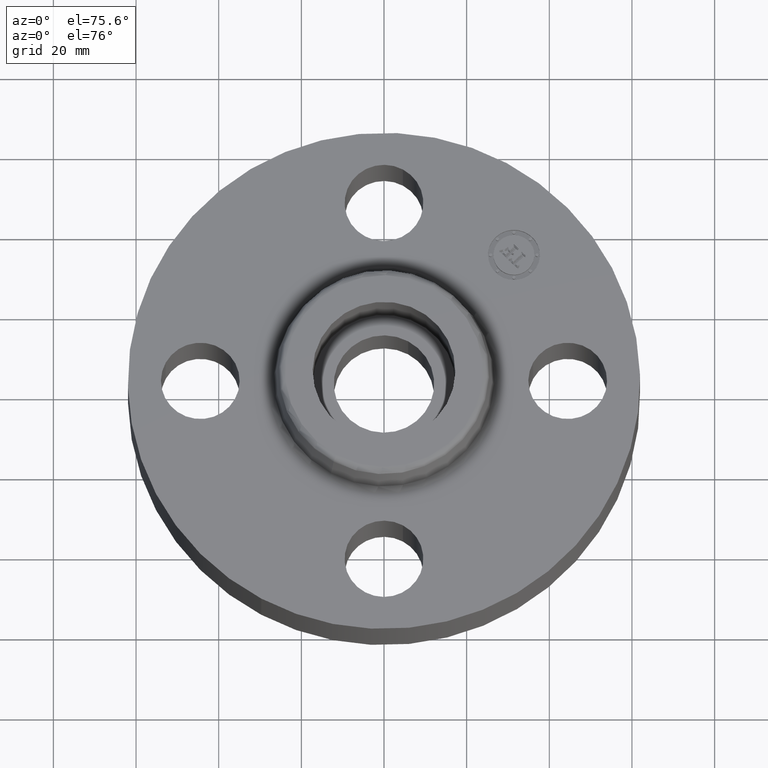
[diagram: clean part render]
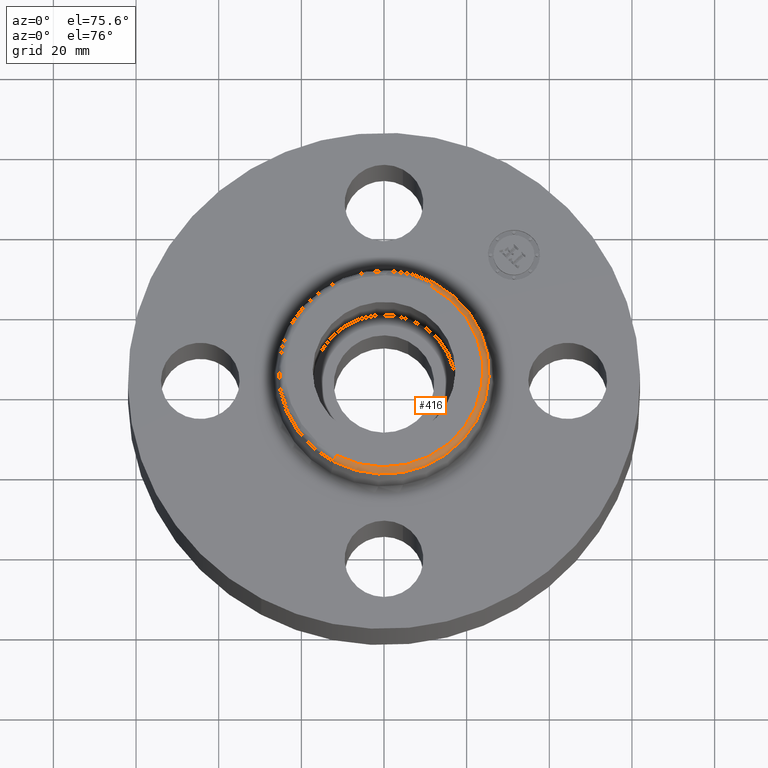
[diagram: same view with one face highlighted and labeled with its STEP entity id]
A machine part, auxiliary view. The second image highlights one B-rep face of the part: STEP entity #416.
In plain terms, the highlighted toroidal blend (fillet) surface has major radius 23.9433 mm and minor (blend) radius 1.524 mm.
Its self-contained STEP definition (entity closure, byte-faithful):
#357=AXIS2_PLACEMENT_3D('Circle Axis2P3D',#355,#356,$) ;
#389=AXIS2_PLACEMENT_3D('Torus Axis2P3D',#386,#387,#388) ;
#393=AXIS2_PLACEMENT_3D('Circle Axis2P3D',#391,#392,$) ;
#400=AXIS2_PLACEMENT_3D('Circle Axis2P3D',#398,#399,$) ;
#407=AXIS2_PLACEMENT_3D('Circle Axis2P3D',#405,#406,$) ;
#352=CARTESIAN_POINT('Vertex',(0.480258892685,0.879108006303,0.950418890664)) ;
#355=CARTESIAN_POINT('Axis2P3D Location',(0.,0.,0.950418890664)) ;
#359=CARTESIAN_POINT('Vertex',(-0.480258892685,-0.879108006303,0.950418890664)) ;
#386=CARTESIAN_POINT('Axis2P3D Location',(0.,0.,0.940000000004)) ;
#391=CARTESIAN_POINT('Axis2P3D Location',(0.45193037344,0.827252999652,0.940000000004)) ;
#395=CARTESIAN_POINT('Vertex',(0.45193037344,0.827252999652,1.)) ;
#398=CARTESIAN_POINT('Axis2P3D Location',(0.,0.,1.)) ;
#402=CARTESIAN_POINT('Vertex',(-0.45193037344,-0.827252999652,1.)) ;
#405=CARTESIAN_POINT('Axis2P3D Location',(-0.45193037344,-0.827252999652,0.940000000004)) ;
#356=DIRECTION('Axis2P3D Direction',(0.,0.,-0.0393700787402)) ;
#387=DIRECTION('Axis2P3D Direction',(0.,0.,-0.0393700787402)) ;
#388=DIRECTION('Axis2P3D XDirection',(-0.0188750212049,-0.0345504945626,0.)) ;
#392=DIRECTION('Axis2P3D Direction',(-0.0345504945626,0.0188750212049,0.)) ;
#399=DIRECTION('Axis2P3D Direction',(0.,0.,-0.0393700787402)) ;
#406=DIRECTION('Axis2P3D Direction',(0.0345504945626,-0.0188750212049,0.)) ;
#411=ORIENTED_EDGE('',*,*,#361,.F.) ;
#412=ORIENTED_EDGE('',*,*,#397,.T.) ;
#413=ORIENTED_EDGE('',*,*,#404,.T.) ;
#414=ORIENTED_EDGE('',*,*,#409,.F.) ;
#416=ADVANCED_FACE('PartBody',(#415),#390,.T.) ;
#358=CIRCLE('generated circle',#357,1.00173823464) ;
#394=CIRCLE('generated circle',#393,0.0600000000002) ;
#401=CIRCLE('generated circle',#400,0.942649769464) ;
#408=CIRCLE('generated circle',#407,0.0600000000002) ;
#390=TOROIDAL_SURFACE('homeo Torus',#389,0.942649769464,0.0600000000002) ;
#361=EDGE_CURVE('',#353,#360,#358,.T.) ;
#397=EDGE_CURVE('',#353,#396,#394,.F.) ;
#404=EDGE_CURVE('',#396,#403,#401,.T.) ;
#409=EDGE_CURVE('',#360,#403,#408,.F.) ;
#410=EDGE_LOOP('',(#411,#412,#413,#414)) ;
#415=FACE_OUTER_BOUND('',#410,.T.) ;
#353=VERTEX_POINT('',#352) ;
#360=VERTEX_POINT('',#359) ;
#396=VERTEX_POINT('',#395) ;
#403=VERTEX_POINT('',#402) ;